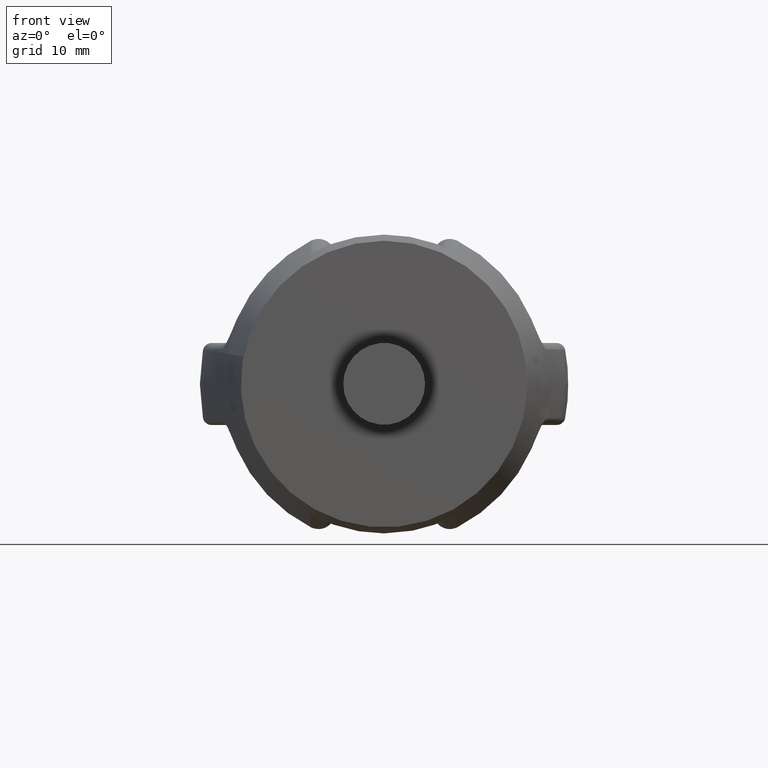
[diagram: clean part render]
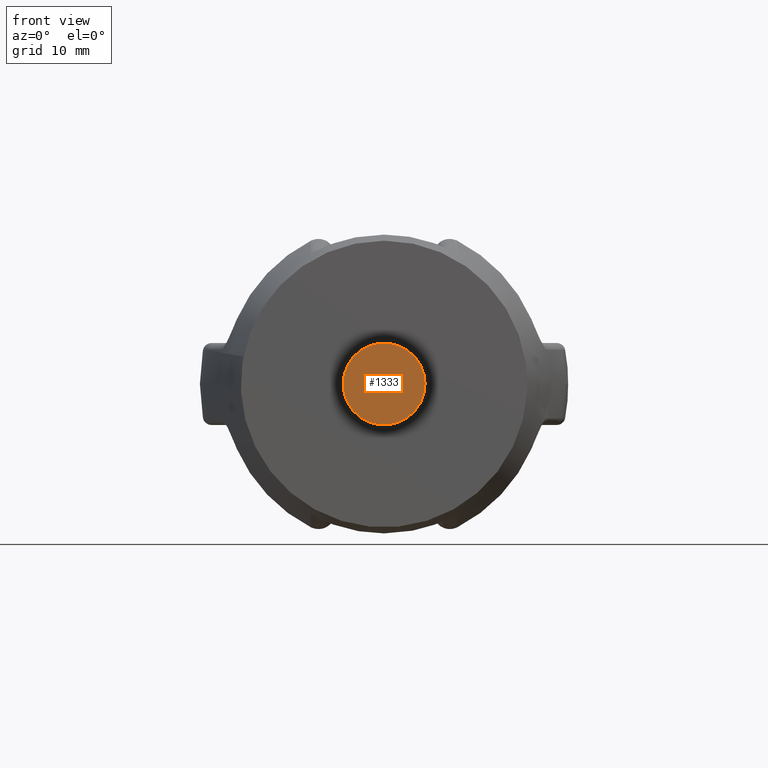
[diagram: same view with one face highlighted and labeled with its STEP entity id]
A machine part, front view. The second image highlights one B-rep face of the part: STEP entity #1333.
In plain terms, the highlighted planar face has unit normal (0, 1, 0).
Its self-contained STEP definition (entity closure, byte-faithful):
#1109=FACE_OUTER_BOUND('',#1849,.T.);
#1333=ADVANCED_FACE('',(#1109),#1567,.F.);
#1567=PLANE('',#5149);
#1691=CIRCLE('',#5147,5.);
#1849=EDGE_LOOP('',(#2887));
#2887=ORIENTED_EDGE('',*,*,#4403,.F.);
#3999=VERTEX_POINT('',#6928);
#4403=EDGE_CURVE('',#3999,#3999,#1691,.T.);
#5147=AXIS2_PLACEMENT_3D('',#6927,#5549,#5550);
#5149=AXIS2_PLACEMENT_3D('',#6930,#5553,#5554);
#5549=DIRECTION('',(0.,1.,0.));
#5550=DIRECTION('',(1.,0.,6.12323399573677E-17));
#5553=DIRECTION('',(0.,1.,0.));
#5554=DIRECTION('',(0.,0.,1.));
#6927=CARTESIAN_POINT('',(0.,-15.,0.));
#6928=CARTESIAN_POINT('',(5.,-15.,3.06161699786838E-16));
#6930=CARTESIAN_POINT('',(0.,-15.,0.));